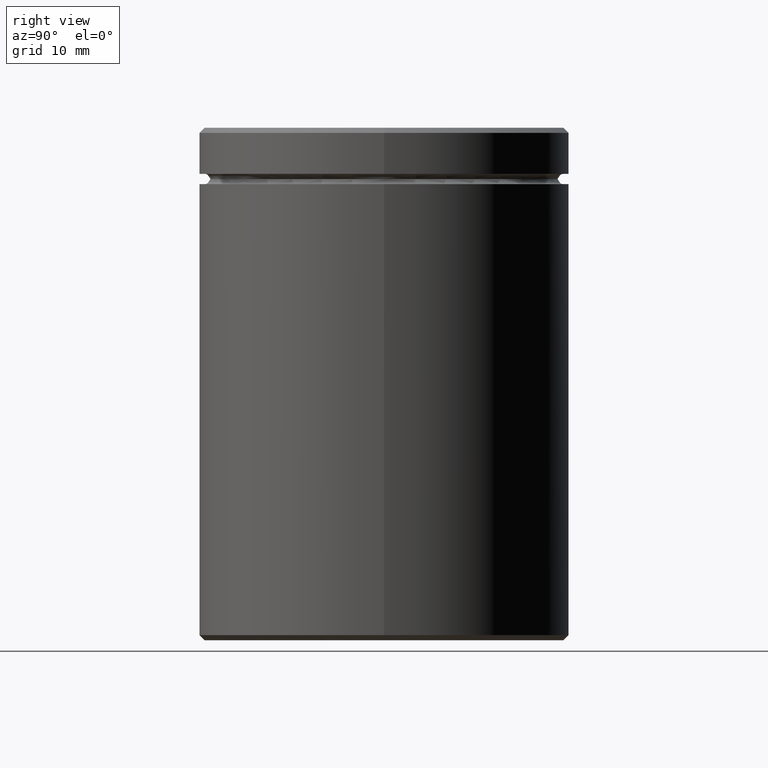
[diagram: clean part render]
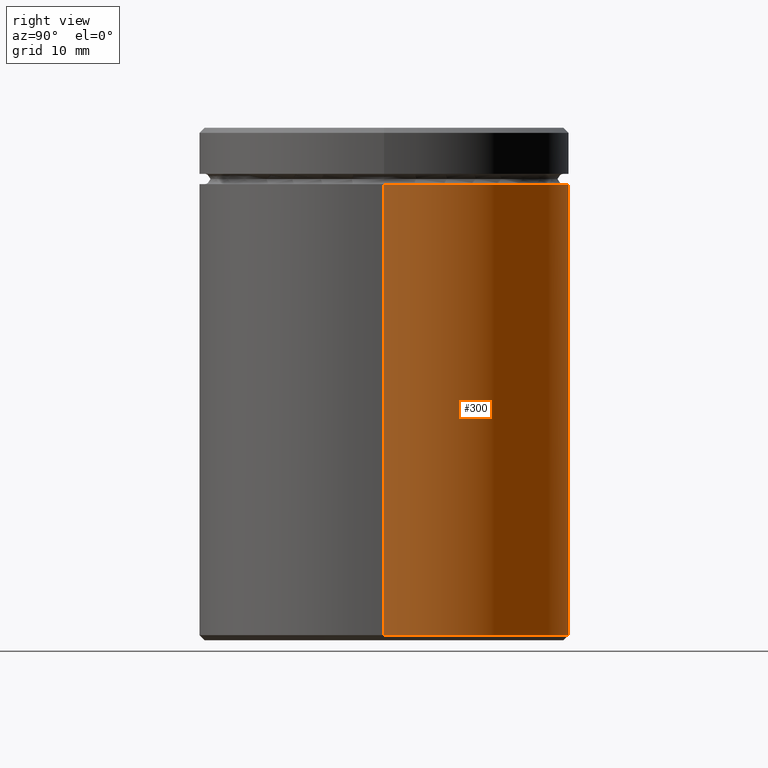
[diagram: same view with one face highlighted and labeled with its STEP entity id]
A machine part, right view. The second image highlights one B-rep face of the part: STEP entity #300.
In plain terms, the highlighted cylindrical surface (partial cylindrical patch) has radius 18 mm, axis along (-0, -0, 1).
Its self-contained STEP definition (entity closure, byte-faithful):
#11 = CARTESIAN_POINT ( 'NONE',  ( 0.000000000000000000, 0.000000000000000000, -5.500000000000000000 ) ) ;
#19 = AXIS2_PLACEMENT_3D ( 'NONE', #559, #161, #77 ) ;
#20 = ORIENTED_EDGE ( 'NONE', *, *, #22, .T. ) ;
#22 = EDGE_CURVE ( 'NONE', #57, #405, #340, .T. ) ;
#37 = CARTESIAN_POINT ( 'NONE',  ( 18.00000000000000000, 0.000000000000000000, -5.500000000000000000 ) ) ;
#57 = VERTEX_POINT ( 'NONE', #260 ) ;
#77 = DIRECTION ( 'NONE',  ( -1.000000000000000000, 0.000000000000000000, 0.000000000000000000 ) ) ;
#89 = ORIENTED_EDGE ( 'NONE', *, *, #515, .F. ) ;
#108 = VECTOR ( 'NONE', #561, 1000.000000000000000 ) ;
#117 = CARTESIAN_POINT ( 'NONE',  ( 18.00000000000000000, 0.000000000000000000, 0.000000000000000000 ) ) ;
#150 = EDGE_CURVE ( 'NONE', #57, #265, #207, .T. ) ;
#161 = DIRECTION ( 'NONE',  ( -0.000000000000000000, -0.000000000000000000, 1.000000000000000000 ) ) ;
#166 = FACE_OUTER_BOUND ( 'NONE', #544, .T. ) ;
#207 = LINE ( 'NONE', #117, #108 ) ;
#234 = ORIENTED_EDGE ( 'NONE', *, *, #317, .T. ) ;
#235 = VECTOR ( 'NONE', #439, 1000.000000000000000 ) ;
#248 = CYLINDRICAL_SURFACE ( 'NONE', #446, 18.00000000000000000 ) ;
#259 = CARTESIAN_POINT ( 'NONE',  ( -18.00000000000000000, 2.204364238465235428E-15, -49.50000000000000000 ) ) ;
#260 = CARTESIAN_POINT ( 'NONE',  ( 18.00000000000000000, 0.000000000000000000, -49.50000000000000000 ) ) ;
#265 = VERTEX_POINT ( 'NONE', #37 ) ;
#274 = DIRECTION ( 'NONE',  ( 1.000000000000000000, 0.000000000000000000, 0.000000000000000000 ) ) ;
#290 = VERTEX_POINT ( 'NONE', #523 ) ;
#294 = DIRECTION ( 'NONE',  ( -0.000000000000000000, -0.000000000000000000, 1.000000000000000000 ) ) ;
#300 = ADVANCED_FACE ( 'NONE', ( #166 ), #248, .T. ) ;
#317 = EDGE_CURVE ( 'NONE', #405, #290, #560, .T. ) ;
#340 = CIRCLE ( 'NONE', #19, 18.00000000000000000 ) ;
#359 = AXIS2_PLACEMENT_3D ( 'NONE', #11, #411, #274 ) ;
#361 = ORIENTED_EDGE ( 'NONE', *, *, #150, .F. ) ;
#385 = CARTESIAN_POINT ( 'NONE',  ( -18.00000000000000000, 2.204364238465235428E-15, 0.000000000000000000 ) ) ;
#387 = CIRCLE ( 'NONE', #359, 18.00000000000000000 ) ;
#405 = VERTEX_POINT ( 'NONE', #259 ) ;
#411 = DIRECTION ( 'NONE',  ( -0.000000000000000000, -0.000000000000000000, 1.000000000000000000 ) ) ;
#431 = CARTESIAN_POINT ( 'NONE',  ( 0.000000000000000000, 0.000000000000000000, 0.000000000000000000 ) ) ;
#439 = DIRECTION ( 'NONE',  ( -0.000000000000000000, -0.000000000000000000, 1.000000000000000000 ) ) ;
#446 = AXIS2_PLACEMENT_3D ( 'NONE', #431, #294, #558 ) ;
#515 = EDGE_CURVE ( 'NONE', #265, #290, #387, .T. ) ;
#523 = CARTESIAN_POINT ( 'NONE',  ( -18.00000000000000000, 2.204364238465235428E-15, -5.500000000000000000 ) ) ;
#544 = EDGE_LOOP ( 'NONE', ( #20, #234, #89, #361 ) ) ;
#558 = DIRECTION ( 'NONE',  ( 1.000000000000000000, 0.000000000000000000, 0.000000000000000000 ) ) ;
#559 = CARTESIAN_POINT ( 'NONE',  ( 0.000000000000000000, 0.000000000000000000, -49.50000000000000000 ) ) ;
#560 = LINE ( 'NONE', #385, #235 ) ;
#561 = DIRECTION ( 'NONE',  ( -0.000000000000000000, -0.000000000000000000, 1.000000000000000000 ) ) ;